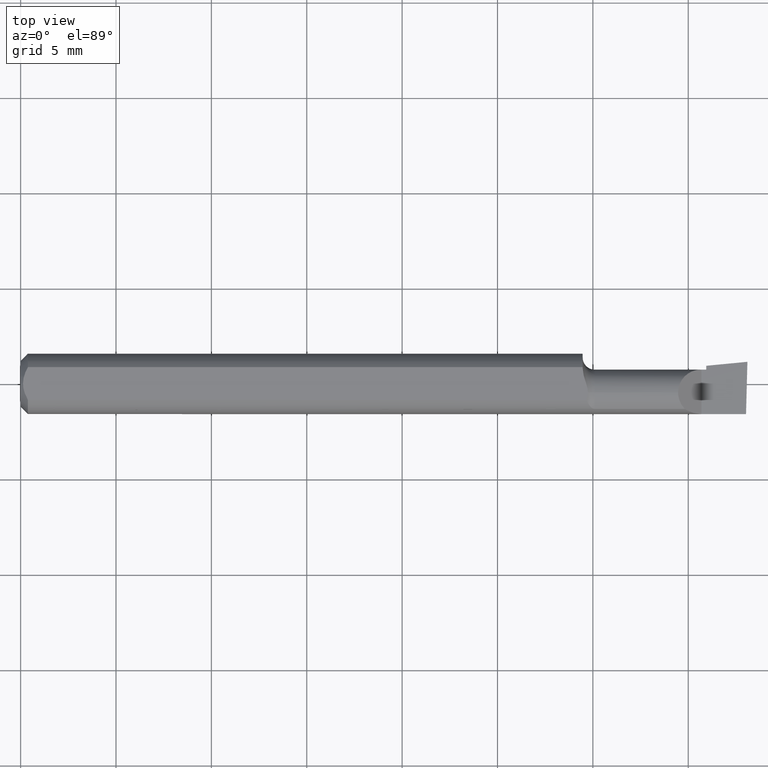
[diagram: clean part render]
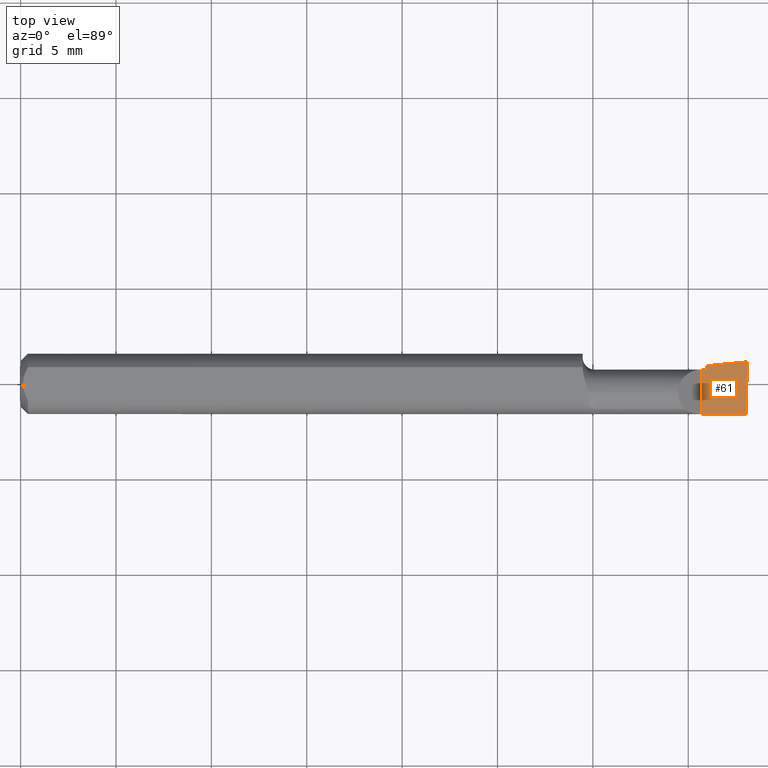
[diagram: same view with one face highlighted and labeled with its STEP entity id]
A machine part, top view. The second image highlights one B-rep face of the part: STEP entity #61.
In plain terms, the highlighted planar face has unit normal (-0, 0, -1).
Its self-contained STEP definition (entity closure, byte-faithful):
#5 = CARTESIAN_POINT ( 'NONE',  ( 1.415000000000000036, 0.02964999999999999233, 1.836970198721026236E-16 ) ) ;
#9 = DIRECTION ( 'NONE',  ( -0.0000000000000000000, 1.000000000000000000, -0.0000000000000000000 ) ) ;
#13 = CARTESIAN_POINT ( 'NONE',  ( 1.405000000000000249, -0.06235000000000005121, 1.163414459189982046E-17 ) ) ;
#26 = DIRECTION ( 'NONE',  ( -1.000000000000000000, -0.0000000000000000000, -0.0000000000000000000 ) ) ;
#28 = EDGE_LOOP ( 'NONE', ( #114, #326, #510, #229, #200, #323 ) ) ;
#31 = CARTESIAN_POINT ( 'NONE',  ( 0.8348153170171558335, -0.01839999999999999969, 8.146162928567849885E-17 ) ) ;
#34 = VERTEX_POINT ( 'NONE', #5 ) ;
#49 = EDGE_CURVE ( 'NONE', #706, #258, #494, .T. ) ;
#61 = ADVANCED_FACE ( 'NONE', ( #260 ), #511, .F. ) ;
#65 = DIRECTION ( 'NONE',  ( 0.02617694830787629934, 0.9996573249755572599, -3.158139334224184651E-18 ) ) ;
#75 = VECTOR ( 'NONE', #9, 39.37007874015748143 ) ;
#101 = AXIS2_PLACEMENT_3D ( 'NONE', #341, #168, #395 ) ;
#114 = ORIENTED_EDGE ( 'NONE', *, *, #270, .F. ) ;
#121 = EDGE_CURVE ( 'NONE', #258, #34, #145, .T. ) ;
#131 = LINE ( 'NONE', #678, #362 ) ;
#132 = VERTEX_POINT ( 'NONE', #619 ) ;
#145 = LINE ( 'NONE', #337, #153 ) ;
#147 = VERTEX_POINT ( 'NONE', #406 ) ;
#152 = LINE ( 'NONE', #242, #279 ) ;
#153 = VECTOR ( 'NONE', #332, 39.37007874015748143 ) ;
#168 = DIRECTION ( 'NONE',  ( -1.224646799147350495E-16, 0.0000000000000000000, -1.000000000000000000 ) ) ;
#188 = DIRECTION ( 'NONE',  ( 0.9953961983671787417, 0.09584575252022461966, -1.219008768213806398E-16 ) ) ;
#200 = ORIENTED_EDGE ( 'NONE', *, *, #121, .F. ) ;
#209 = EDGE_CURVE ( 'NONE', #147, #132, #321, .T. ) ;
#229 = ORIENTED_EDGE ( 'NONE', *, *, #699, .F. ) ;
#242 = CARTESIAN_POINT ( 'NONE',  ( 2.249639673992775738E-32, -0.06234999999999999570, 1.836970198721025250E-16 ) ) ;
#258 = VERTEX_POINT ( 'NONE', #525 ) ;
#260 = FACE_OUTER_BOUND ( 'NONE', #28, .T. ) ;
#270 = EDGE_CURVE ( 'NONE', #670, #706, #152, .T. ) ;
#279 = VECTOR ( 'NONE', #26, 39.37007874015748143 ) ;
#321 = LINE ( 'NONE', #31, #557 ) ;
#323 = ORIENTED_EDGE ( 'NONE', *, *, #49, .F. ) ;
#326 = ORIENTED_EDGE ( 'NONE', *, *, #702, .T. ) ;
#332 = DIRECTION ( 'NONE',  ( 1.000000000000000000, 0.0000000000000000000, 0.0000000000000000000 ) ) ;
#337 = CARTESIAN_POINT ( 'NONE',  ( 2.249639673992775738E-32, 0.02964999999999997499, 1.836970198721025250E-16 ) ) ;
#341 = CARTESIAN_POINT ( 'NONE',  ( 1.500000000000000222, -0.2500000000000000555, 0.0000000000000000000 ) ) ;
#362 = VECTOR ( 'NONE', #65, 39.37007874015748143 ) ;
#369 = VECTOR ( 'NONE', #686, 39.37007874015748143 ) ;
#395 = DIRECTION ( 'NONE',  ( -1.000000000000000000, 0.0000000000000000000, 1.224646799147350495E-16 ) ) ;
#406 = CARTESIAN_POINT ( 'NONE',  ( 1.415000000000000036, 0.03746543090321034775, 1.899488058094682973E-16 ) ) ;
#414 = CARTESIAN_POINT ( 'NONE',  ( 1.415000000000000036, -0.2500000000000000555, 1.040949779275248537E-17 ) ) ;
#492 = CARTESIAN_POINT ( 'NONE',  ( 1.405000000000000249, -0.2500000000000000555, 1.163414459189982046E-17 ) ) ;
#494 = LINE ( 'NONE', #492, #75 ) ;
#510 = ORIENTED_EDGE ( 'NONE', *, *, #209, .F. ) ;
#511 = PLANE ( 'NONE',  #101 ) ;
#525 = CARTESIAN_POINT ( 'NONE',  ( 1.405000000000000249, 0.02964999999999991601, 1.163414459189982046E-17 ) ) ;
#557 = VECTOR ( 'NONE', #188, 39.37007874015748143 ) ;
#572 = CARTESIAN_POINT ( 'NONE',  ( 1.497171920470529161, -0.06235000000000005121, 3.552677088412731724E-19 ) ) ;
#619 = CARTESIAN_POINT ( 'NONE',  ( 1.500000000000005551, 0.04565000000000923180, 2.867026448585130532E-14 ) ) ;
#667 = LINE ( 'NONE', #414, #369 ) ;
#670 = VERTEX_POINT ( 'NONE', #572 ) ;
#678 = CARTESIAN_POINT ( 'NONE',  ( 1.492263437268387616, -0.2497974109750948912, 9.474556785672067455E-19 ) ) ;
#686 = DIRECTION ( 'NONE',  ( 0.0000000000000000000, 1.000000000000000000, 0.0000000000000000000 ) ) ;
#699 = EDGE_CURVE ( 'NONE', #34, #147, #667, .T. ) ;
#702 = EDGE_CURVE ( 'NONE', #670, #132, #131, .T. ) ;
#706 = VERTEX_POINT ( 'NONE', #13 ) ;